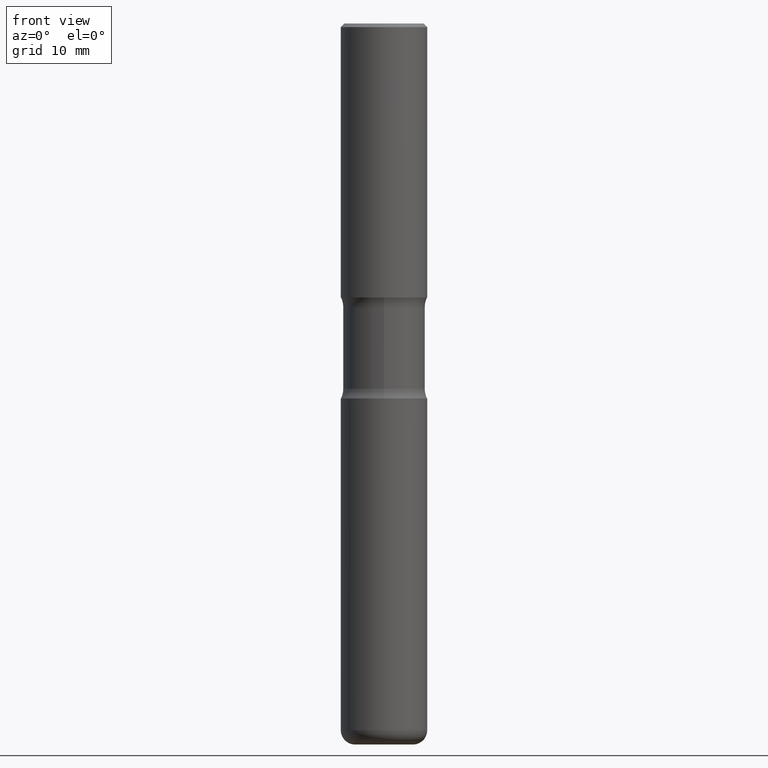
[diagram: clean part render]
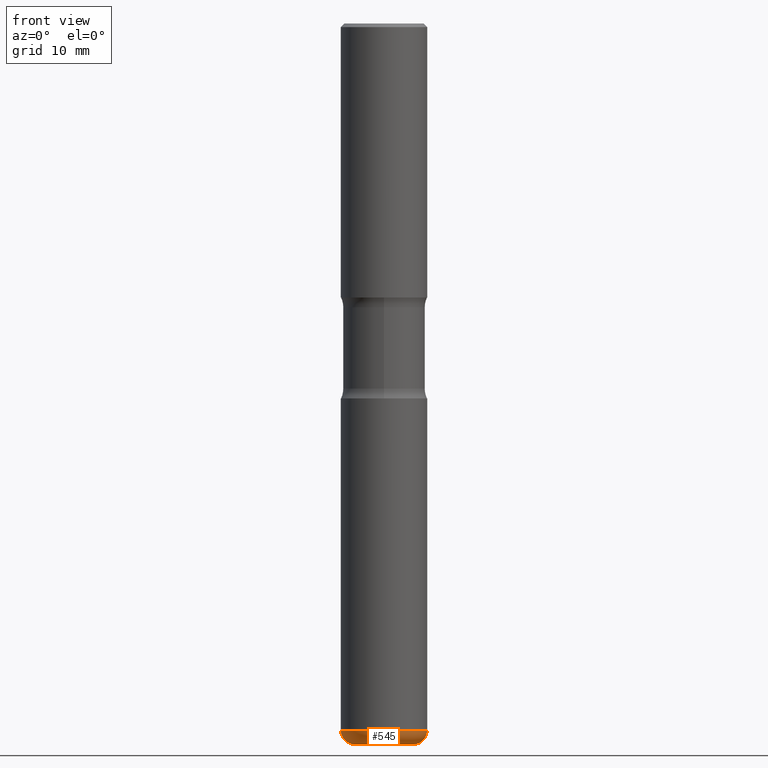
[diagram: same view with one face highlighted and labeled with its STEP entity id]
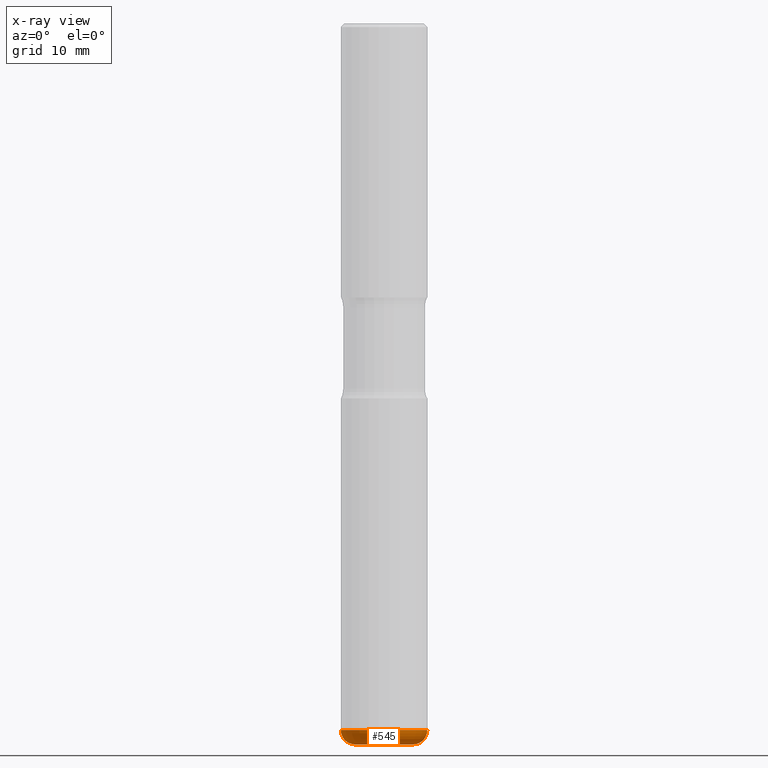
[diagram: x-ray of the same camera — body ghosted, the highlighted face saturated]
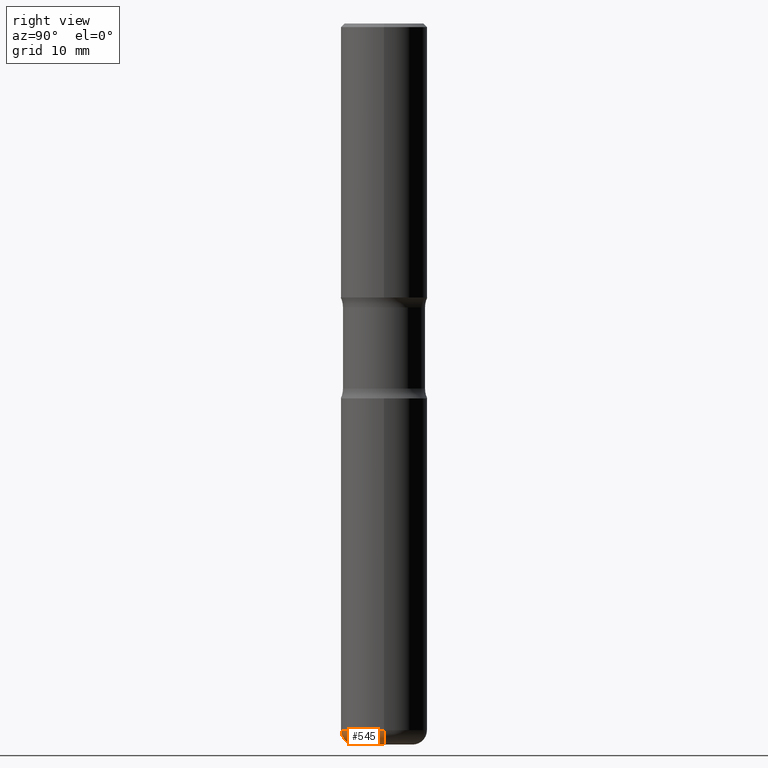
[diagram: same view with one face highlighted and labeled with its STEP entity id]
A machine part, front view. The second image highlights one B-rep face of the part: STEP entity #545.
The next image is the same camera in x-ray: the body ghosted, the highlighted face saturated — about 0% of this face is hidden behind the body in this view.
A second angle (right view) of the same face is appended — the face is thin or edge-on in the first view.
In plain terms, the highlighted toroidal blend (fillet) surface has major radius 4.0005 mm and minor (blend) radius 1.999 mm.
Its self-contained STEP definition (entity closure, byte-faithful):
#8 = AXIS2_PLACEMENT_3D ( 'NONE', #295, #450, #28 ) ;
#18 = CIRCLE ( 'NONE', #357, 0.07869999999999956197 ) ;
#19 = FACE_OUTER_BOUND ( 'NONE', #229, .T. ) ;
#20 = CARTESIAN_POINT ( 'NONE',  ( 0.1575000000000002232, -1.484577865276105326E-14, -3.937000000000000277 ) ) ;
#28 = DIRECTION ( 'NONE',  ( 1.000000000000000000, -6.982962677686270655E-15, 4.883557194083114583E-29 ) ) ;
#38 = CARTESIAN_POINT ( 'NONE',  ( 0.2361999999999999378, -1.512055823412800660E-14, -3.858300000000000729 ) ) ;
#40 = AXIS2_PLACEMENT_3D ( 'NONE', #239, #117, #532 ) ;
#57 = AXIS2_PLACEMENT_3D ( 'NONE', #427, #104, #189 ) ;
#67 = VERTEX_POINT ( 'NONE', #419 ) ;
#71 = VERTEX_POINT ( 'NONE', #20 ) ;
#98 = TOROIDAL_SURFACE ( 'NONE', #8, 0.1575000000000002232, 0.07869999999999957585 ) ;
#104 = DIRECTION ( 'NONE',  ( -6.982962677686266711E-15, -1.000000000000000000, 3.491481338843145583E-15 ) ) ;
#117 = DIRECTION ( 'NONE',  ( -2.445468806185136597E-29, 3.491481338843145583E-15, 1.000000000000000000 ) ) ;
#181 = CARTESIAN_POINT ( 'NONE',  ( 9.627810689950883669E-29, -1.374596203102546341E-14, -3.937000000000000277 ) ) ;
#182 = ORIENTED_EDGE ( 'NONE', *, *, #535, .F. ) ;
#189 = DIRECTION ( 'NONE',  ( 1.000000000000000000, -6.982962677686259611E-15, 0.000000000000000000 ) ) ;
#193 = VERTEX_POINT ( 'NONE', #38 ) ;
#199 = DIRECTION ( 'NONE',  ( 7.105427357601001859E-15, 1.000000000000000000, -3.491481338843145583E-15 ) ) ;
#221 = AXIS2_PLACEMENT_3D ( 'NONE', #181, #316, #278 ) ;
#227 = CARTESIAN_POINT ( 'NONE',  ( -0.1575000000000002232, -1.220986886499823132E-14, -3.937000000000000277 ) ) ;
#229 = EDGE_LOOP ( 'NONE', ( #495, #442, #379, #182 ) ) ;
#239 = CARTESIAN_POINT ( 'NONE',  ( 9.435352294904113263E-29, -1.347118244965851008E-14, -3.858300000000000729 ) ) ;
#278 = DIRECTION ( 'NONE',  ( 1.000000000000000000, -6.982962677686265133E-15, 0.000000000000000000 ) ) ;
#292 = EDGE_CURVE ( 'NONE', #397, #71, #526, .T. ) ;
#295 = CARTESIAN_POINT ( 'NONE',  ( 9.435352294904113263E-29, -1.347118244965851008E-14, -3.858300000000000729 ) ) ;
#297 = CARTESIAN_POINT ( 'NONE',  ( -0.1575000000000002232, -1.235207764083635089E-14, -3.858300000000000729 ) ) ;
#304 = CIRCLE ( 'NONE', #57, 0.07869999999999956197 ) ;
#316 = DIRECTION ( 'NONE',  ( -2.445468806185136597E-29, 3.491481338843145583E-15, 1.000000000000000000 ) ) ;
#357 = AXIS2_PLACEMENT_3D ( 'NONE', #297, #199, #441 ) ;
#361 = EDGE_CURVE ( 'NONE', #71, #193, #304, .T. ) ;
#379 = ORIENTED_EDGE ( 'NONE', *, *, #361, .T. ) ;
#389 = CIRCLE ( 'NONE', #40, 0.2362000000000000210 ) ;
#397 = VERTEX_POINT ( 'NONE', #227 ) ;
#419 = CARTESIAN_POINT ( 'NONE',  ( -0.2361999999999999378, -1.179288050779315526E-14, -3.858300000000000729 ) ) ;
#427 = CARTESIAN_POINT ( 'NONE',  ( 0.1575000000000002232, -1.457099907139409992E-14, -3.858300000000000729 ) ) ;
#441 = DIRECTION ( 'NONE',  ( -1.000000000000000000, 7.105427357601008170E-15, 0.000000000000000000 ) ) ;
#442 = ORIENTED_EDGE ( 'NONE', *, *, #292, .T. ) ;
#450 = DIRECTION ( 'NONE',  ( -2.445468806185136597E-29, 3.491481338843145583E-15, 1.000000000000000000 ) ) ;
#480 = EDGE_CURVE ( 'NONE', #397, #67, #18, .T. ) ;
#495 = ORIENTED_EDGE ( 'NONE', *, *, #480, .F. ) ;
#526 = CIRCLE ( 'NONE', #221, 0.1575000000000002232 ) ;
#532 = DIRECTION ( 'NONE',  ( 1.000000000000000000, -6.982962677686264344E-15, 0.000000000000000000 ) ) ;
#535 = EDGE_CURVE ( 'NONE', #67, #193, #389, .T. ) ;
#545 = ADVANCED_FACE ( 'NONE', ( #19 ), #98, .T. ) ;